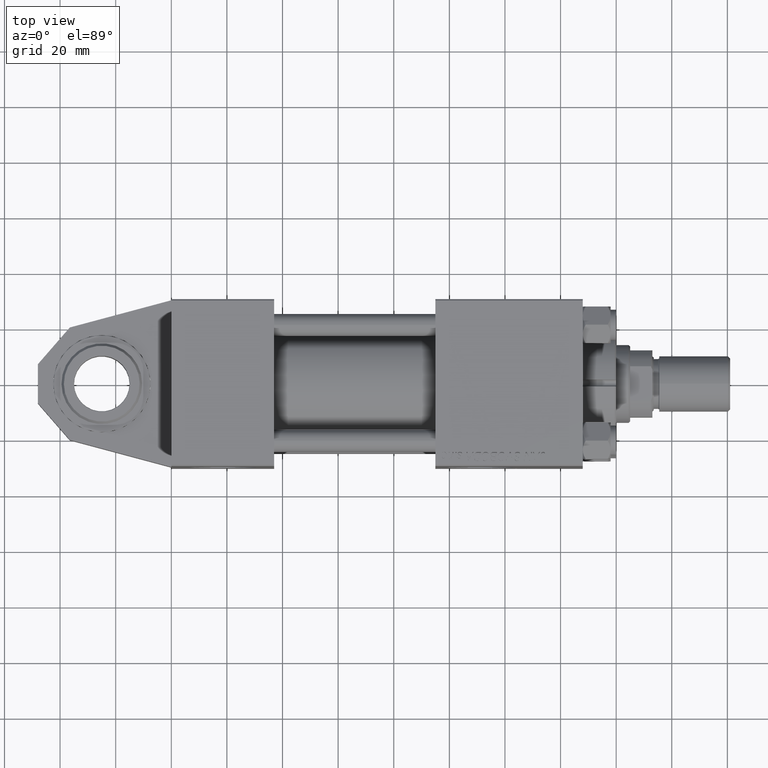
[diagram: clean part render]
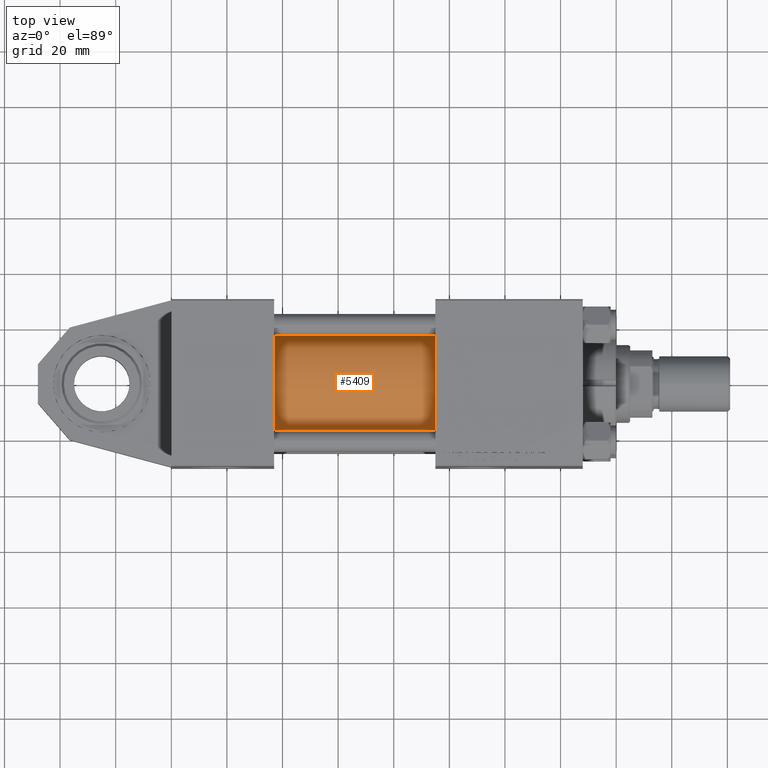
[diagram: same view with one face highlighted and labeled with its STEP entity id]
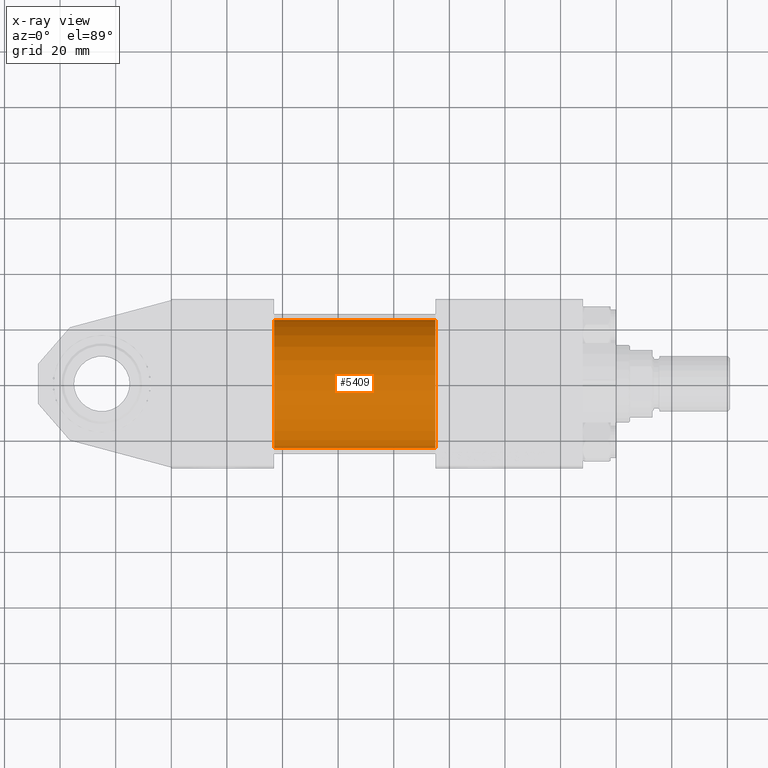
[diagram: x-ray of the same camera — body ghosted, the highlighted face saturated]
A machine part, top view. The second image highlights one B-rep face of the part: STEP entity #5409.
The next image is the same camera in x-ray: the body ghosted, the highlighted face saturated — about 0% of this face is hidden behind the body in this view.
In plain terms, the highlighted cylindrical surface (partial cylindrical patch) has radius 23 mm, axis along (-1, 0, -0).
Its self-contained STEP definition (entity closure, byte-faithful):
#93 = AXIS2_PLACEMENT_3D ( 'NONE', #20987, #7336, #26098 ) ;
#3281 = CARTESIAN_POINT ( 'NONE',  ( 37.00000000000000000, -2.602085213965210642E-15, 0.000000000000000000 ) ) ;
#5320 = FACE_OUTER_BOUND ( 'NONE', #50156, .T. ) ;
#5347 = CARTESIAN_POINT ( 'NONE',  ( 95.00000000000000000, -2.602085213965210642E-15, 23.00000000000000000 ) ) ;
#5409 = ADVANCED_FACE ( 'NONE', ( #5320 ), #9428, .T. ) ;
#5527 = EDGE_CURVE ( 'NONE', #8097, #35251, #18135, .T. ) ;
#5734 = CARTESIAN_POINT ( 'NONE',  ( 95.00000000000000000, 2.146024240737012665E-16, -23.00000000000000000 ) ) ;
#7336 = DIRECTION ( 'NONE',  ( -1.000000000000000000, -0.000000000000000000, -0.000000000000000000 ) ) ;
#8097 = VERTEX_POINT ( 'NONE', #5347 ) ;
#9157 = ORIENTED_EDGE ( 'NONE', *, *, #23190, .T. ) ;
#9428 = CYLINDRICAL_SURFACE ( 'NONE', #93, 23.00000000000000000 ) ;
#10760 = VECTOR ( 'NONE', #49469, 1000.000000000000000 ) ;
#16292 = EDGE_CURVE ( 'NONE', #35055, #8097, #26548, .T. ) ;
#18135 = LINE ( 'NONE', #34293, #10760 ) ;
#18704 = ORIENTED_EDGE ( 'NONE', *, *, #5527, .F. ) ;
#19149 = AXIS2_PLACEMENT_3D ( 'NONE', #33288, #45616, #22513 ) ;
#20333 = CARTESIAN_POINT ( 'NONE',  ( 37.00000000000000000, -2.602085213965210642E-15, 23.00000000000000000 ) ) ;
#20987 = CARTESIAN_POINT ( 'NONE',  ( 95.00000000000000000, -2.602085213965210642E-15, 0.000000000000000000 ) ) ;
#21861 = DIRECTION ( 'NONE',  ( 1.000000000000000000, -0.000000000000000000, 0.000000000000000000 ) ) ;
#22513 = DIRECTION ( 'NONE',  ( 0.000000000000000000, 0.000000000000000000, -1.000000000000000000 ) ) ;
#23190 = EDGE_CURVE ( 'NONE', #35055, #38131, #46990, .T. ) ;
#23284 = AXIS2_PLACEMENT_3D ( 'NONE', #3281, #21861, #31248 ) ;
#24410 = ORIENTED_EDGE ( 'NONE', *, *, #31129, .T. ) ;
#26098 = DIRECTION ( 'NONE',  ( 0.000000000000000000, 0.000000000000000000, 1.000000000000000000 ) ) ;
#26548 = CIRCLE ( 'NONE', #19149, 23.00000000000000000 ) ;
#31129 = EDGE_CURVE ( 'NONE', #38131, #35251, #33928, .T. ) ;
#31248 = DIRECTION ( 'NONE',  ( 0.000000000000000000, 0.000000000000000000, 1.000000000000000000 ) ) ;
#31825 = CARTESIAN_POINT ( 'NONE',  ( 95.00000000000000000, 2.146024240737012665E-16, -23.00000000000000000 ) ) ;
#32583 = CARTESIAN_POINT ( 'NONE',  ( 37.00000000000000000, 2.146024240737012665E-16, -23.00000000000000000 ) ) ;
#33288 = CARTESIAN_POINT ( 'NONE',  ( 95.00000000000000000, -2.602085213965210642E-15, 0.000000000000000000 ) ) ;
#33928 = CIRCLE ( 'NONE', #23284, 23.00000000000000000 ) ;
#34293 = CARTESIAN_POINT ( 'NONE',  ( 95.00000000000000000, -2.602085213965210642E-15, 23.00000000000000000 ) ) ;
#35055 = VERTEX_POINT ( 'NONE', #5734 ) ;
#35120 = ORIENTED_EDGE ( 'NONE', *, *, #16292, .F. ) ;
#35251 = VERTEX_POINT ( 'NONE', #20333 ) ;
#38131 = VERTEX_POINT ( 'NONE', #32583 ) ;
#39778 = DIRECTION ( 'NONE',  ( -1.000000000000000000, -0.000000000000000000, -0.000000000000000000 ) ) ;
#45616 = DIRECTION ( 'NONE',  ( 1.000000000000000000, 0.000000000000000000, 0.000000000000000000 ) ) ;
#46990 = LINE ( 'NONE', #31825, #47743 ) ;
#47743 = VECTOR ( 'NONE', #39778, 1000.000000000000000 ) ;
#49469 = DIRECTION ( 'NONE',  ( -1.000000000000000000, -0.000000000000000000, -0.000000000000000000 ) ) ;
#50156 = EDGE_LOOP ( 'NONE', ( #35120, #9157, #24410, #18704 ) ) ;